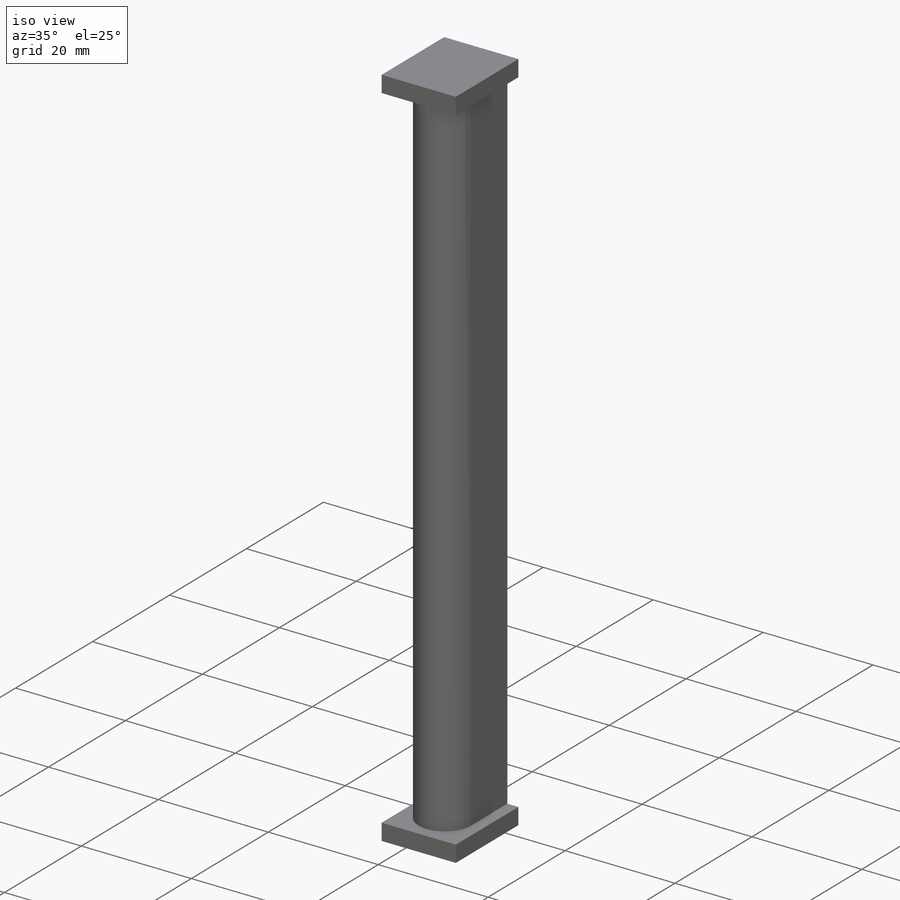
[diagram: iso view]
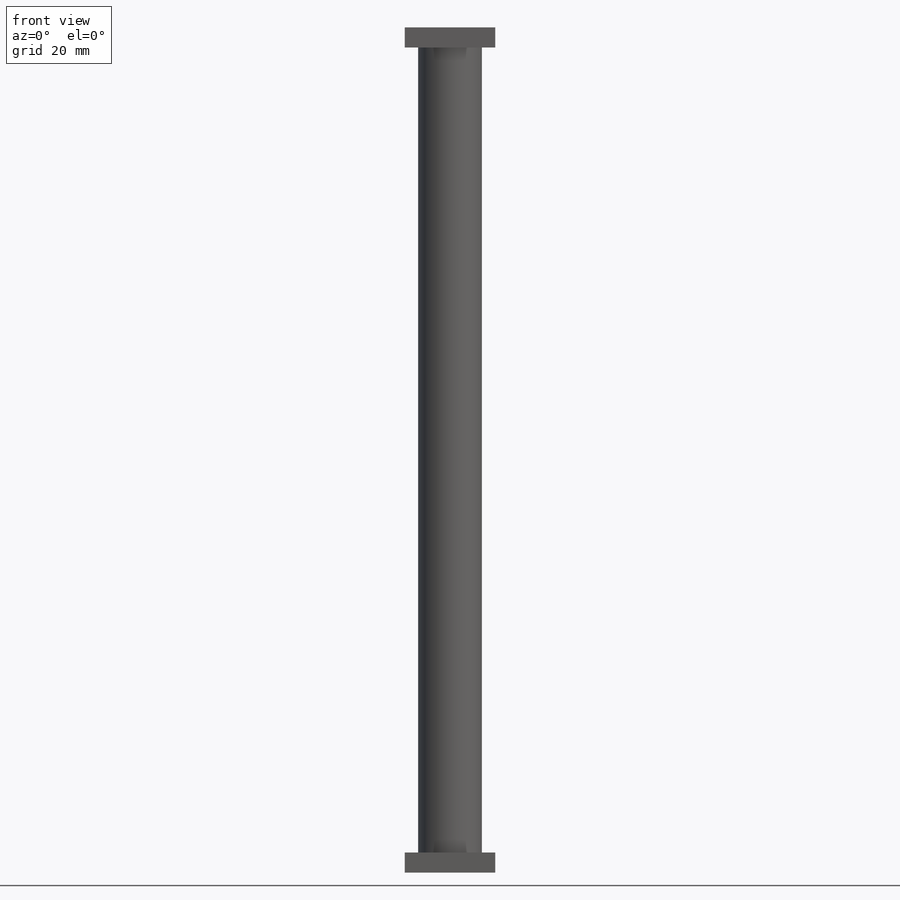
[diagram: front view]
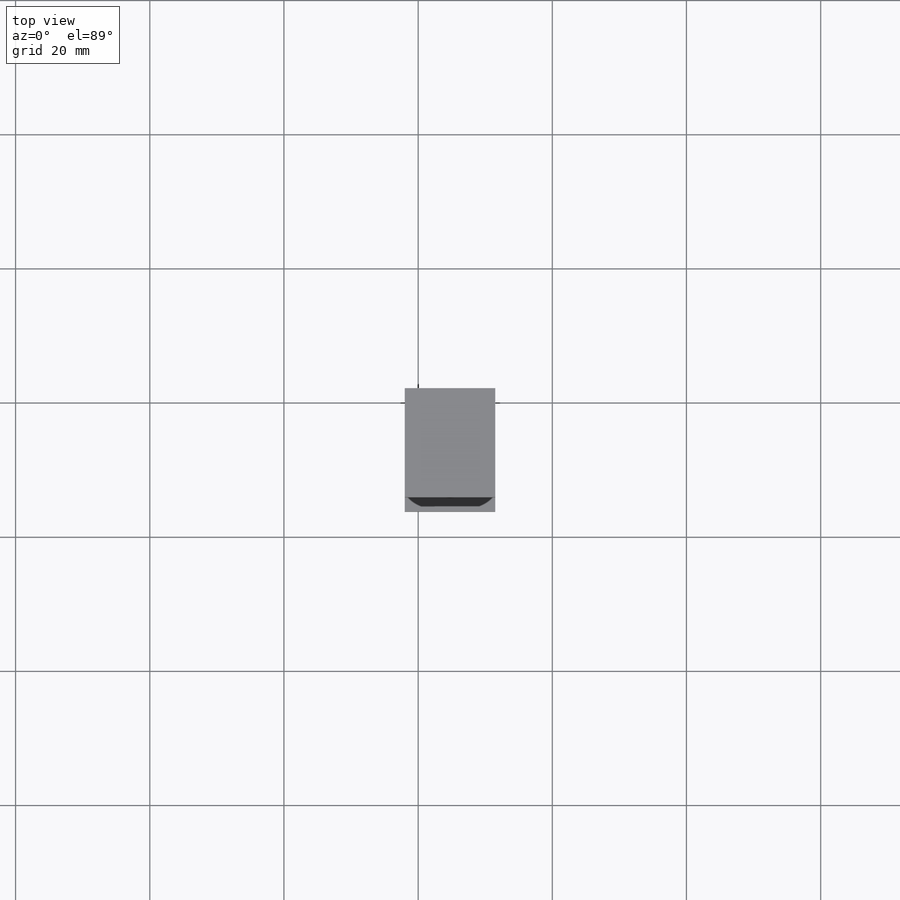
[diagram: top view]
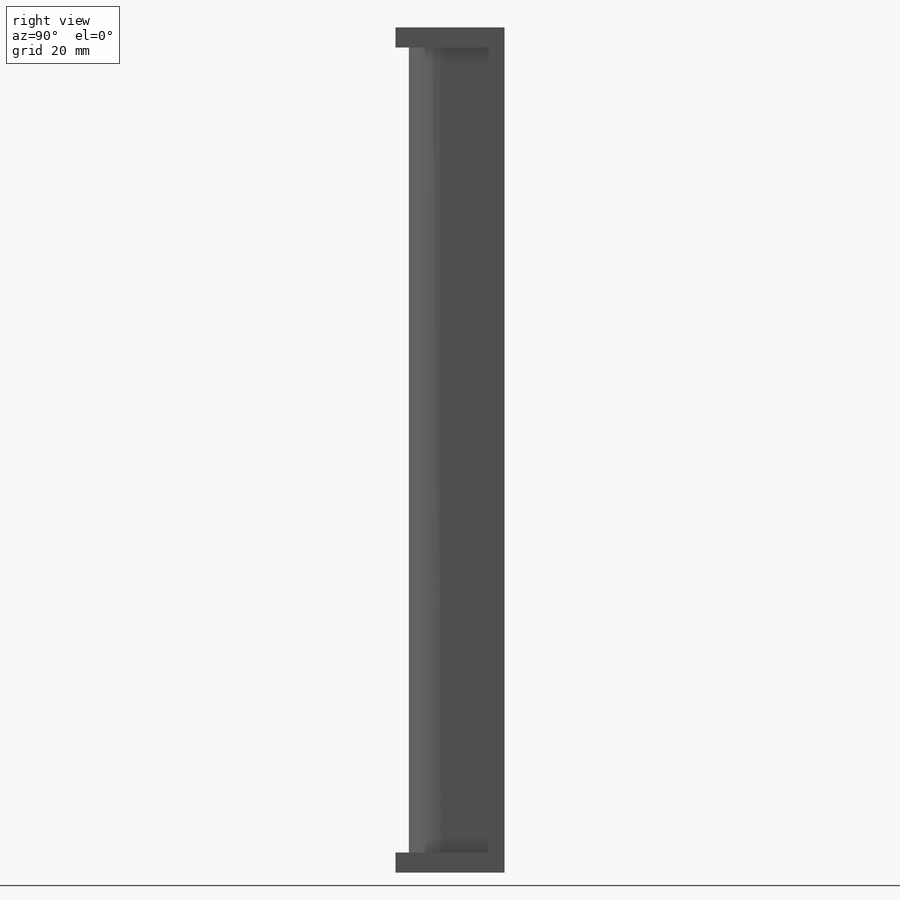
[diagram: right view]
SOLIDWORKS PART (.sldprt)
format: sldprt  version: not decoded by parser v0  size: 140,800 bytes
history: native  units: mm
features: sketch x3, extrude x3, material x1 (+11 scaffold rows collapsed)
feature tree (18):
  scaffold x11  (default folders/planes/origin — collapsed)
  material  "Material <not specified>"
  sketch  "Sketch5"  dims[c1.D2=4.75mm c1.D1=9.5mm c1.D3=9.5mm c2.D2=9.5mm c2.D3=9.5mm]
  extrude  "Boss-Extrude1"  Depth=120mm
  sketch  "Sketch8"  dims[D1=2.0mm D2=2.0mm D3=2.0mm]
  extrude  "Boss-Extrude4"  Depth=3mm
  sketch  "Sketch9"
  extrude  "Boss-Extrude5"  Depth=3mm
decode coverage: 5 of 6 modeling features carry decoded parameters
note: suppression state not decoded; provenance and decode notes live in map.json
